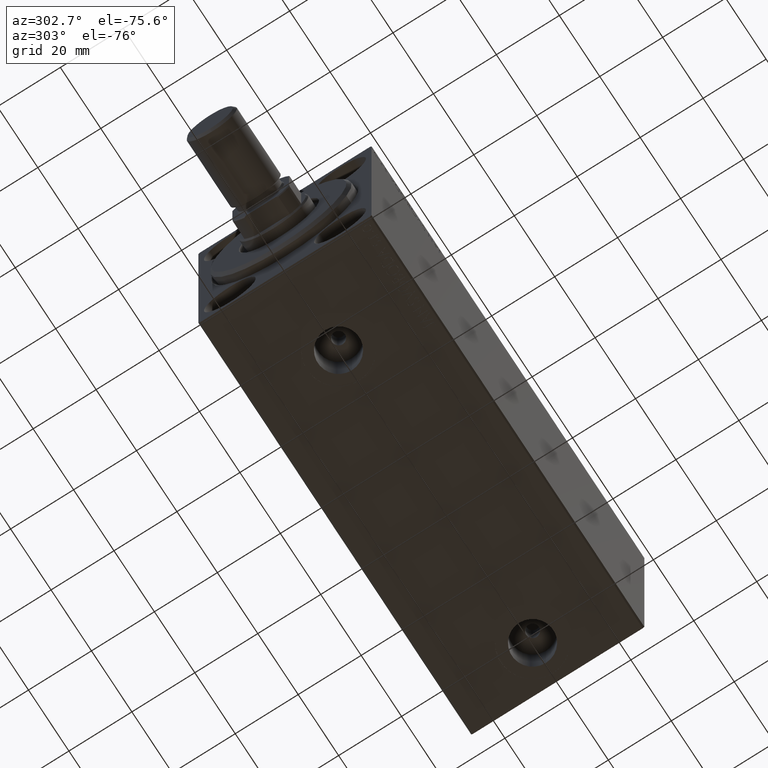
[diagram: clean part render]
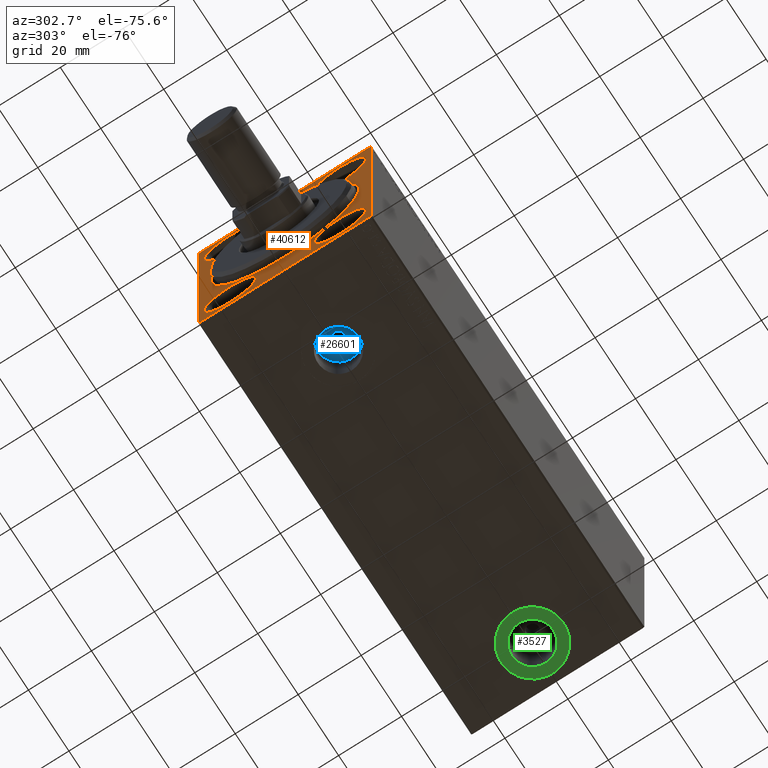
[diagram: same view with three faces highlighted in distinct colors, each labeled with its STEP entity id]
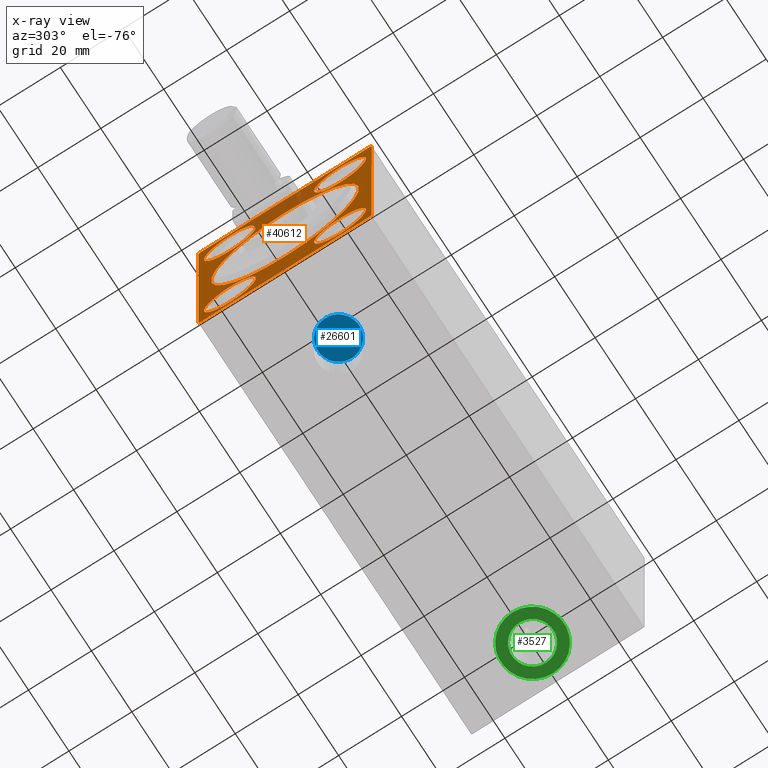
[diagram: x-ray of the same camera — body ghosted, the three highlighted faces saturated]
A machine part, auxiliary view with three faces highlighted in distinct colors.
The next image is the same camera in x-ray (body ghosted, the three faces saturated) — at least one of them is partly hidden behind the body in this view.
Their STEP definitions:

[orange] entity #40612 — the highlighted planar face has unit normal (1, 0, 0).
#225 = CIRCLE ( 'NONE', #25340, 8.250000000000000000 ) ;
#268 = VECTOR ( 'NONE', #3888, 1000.000000000000000 ) ;
#359 = VECTOR ( 'NONE', #1130, 1000.000000000000000 ) ;
#388 = DIRECTION ( 'NONE',  ( -1.000000000000000000, 0.000000000000000000, 0.000000000000000000 ) ) ;
#727 = ORIENTED_EDGE ( 'NONE', *, *, #12573, .T. ) ;
#761 = EDGE_LOOP ( 'NONE', ( #2036, #2988 ) ) ;
#966 = CARTESIAN_POINT ( 'NONE',  ( 0.000000000000000000, -27.00000000000001776, 37.50000000000000000 ) ) ;
#1051 = DIRECTION ( 'NONE',  ( 0.000000000000000000, 0.000000000000000000, 1.000000000000000000 ) ) ;
#1130 = DIRECTION ( 'NONE',  ( 0.000000000000000000, 0.000000000000000000, -1.000000000000000000 ) ) ;
#1443 = ORIENTED_EDGE ( 'NONE', *, *, #33739, .F. ) ;
#1985 = CARTESIAN_POINT ( 'NONE',  ( 0.000000000000000000, -27.00000000000001776, -37.50000000000000000 ) ) ;
#2036 = ORIENTED_EDGE ( 'NONE', *, *, #40792, .T. ) ;
#2096 = LINE ( 'NONE', #15796, #14064 ) ;
#2571 = CIRCLE ( 'NONE', #19069, 8.250000000000000000 ) ;
#2980 = ORIENTED_EDGE ( 'NONE', *, *, #35811, .F. ) ;
#2988 = ORIENTED_EDGE ( 'NONE', *, *, #32756, .T. ) ;
#3086 = DIRECTION ( 'NONE',  ( 0.000000000000000000, 0.000000000000000000, -1.000000000000000000 ) ) ;
#3096 = ORIENTED_EDGE ( 'NONE', *, *, #28322, .T. ) ;
#3167 = CARTESIAN_POINT ( 'NONE',  ( 0.000000000000000000, 27.49999999999999645, 37.50000000000000711 ) ) ;
#3673 = EDGE_LOOP ( 'NONE', ( #26452, #31049 ) ) ;
#3690 = VERTEX_POINT ( 'NONE', #44429 ) ;
#3888 = DIRECTION ( 'NONE',  ( -0.000000000000000000, 0.7071067811865524577, -0.7071067811865426878 ) ) ;
#4686 = CARTESIAN_POINT ( 'NONE',  ( 0.000000000000000000, 27.50000000000000355, -37.00000000000001421 ) ) ;
#5042 = ORIENTED_EDGE ( 'NONE', *, *, #13919, .T. ) ;
#5231 = VECTOR ( 'NONE', #5671, 1000.000000000000000 ) ;
#5671 = DIRECTION ( 'NONE',  ( 0.000000000000000000, -1.000000000000000000, -1.261617073437677999E-16 ) ) ;
#5683 = VECTOR ( 'NONE', #9772, 1000.000000000000114 ) ;
#5735 = ORIENTED_EDGE ( 'NONE', *, *, #40577, .F. ) ;
#6039 = DIRECTION ( 'NONE',  ( 0.000000000000000000, -0.7071067811865474617, -0.7071067811865474617 ) ) ;
#7014 = EDGE_LOOP ( 'NONE', ( #30357, #24914 ) ) ;
#7120 = DIRECTION ( 'NONE',  ( -1.000000000000000000, 0.000000000000000000, 0.000000000000000000 ) ) ;
#7311 = DIRECTION ( 'NONE',  ( -1.000000000000000000, 0.000000000000000000, 0.000000000000000000 ) ) ;
#7412 = CARTESIAN_POINT ( 'NONE',  ( 0.000000000000000000, 17.50000000000000355, 35.74999999999999289 ) ) ;
#7455 = CARTESIAN_POINT ( 'NONE',  ( 0.000000000000000000, -17.50000000000000355, -19.25000000000000355 ) ) ;
#7954 = VERTEX_POINT ( 'NONE', #27145 ) ;
#8027 = DIRECTION ( 'NONE',  ( 0.000000000000000000, 0.000000000000000000, -1.000000000000000000 ) ) ;
#8334 = VERTEX_POINT ( 'NONE', #28854 ) ;
#8611 = CARTESIAN_POINT ( 'NONE',  ( 0.000000000000000000, 0.000000000000000000, 23.50000000000000355 ) ) ;
#9772 = DIRECTION ( 'NONE',  ( -0.000000000000000000, -0.7071067811865573427, 0.7071067811865376918 ) ) ;
#9852 = CARTESIAN_POINT ( 'NONE',  ( 0.000000000000000000, 27.50000000000000355, -37.00000000000001421 ) ) ;
#10179 = ORIENTED_EDGE ( 'NONE', *, *, #39146, .F. ) ;
#10185 = DIRECTION ( 'NONE',  ( 0.000000000000000000, 0.000000000000000000, 1.000000000000000000 ) ) ;
#11079 = VERTEX_POINT ( 'NONE', #4686 ) ;
#11122 = CARTESIAN_POINT ( 'NONE',  ( 0.000000000000000000, -17.49999999999999645, 27.49999999999999645 ) ) ;
#11622 = DIRECTION ( 'NONE',  ( 0.000000000000000000, 0.000000000000000000, 1.000000000000000000 ) ) ;
#11814 = DIRECTION ( 'NONE',  ( 1.000000000000000000, 0.000000000000000000, 0.000000000000000000 ) ) ;
#12518 = CARTESIAN_POINT ( 'NONE',  ( 0.000000000000000000, 0.000000000000000000, 0.000000000000000000 ) ) ;
#12573 = EDGE_CURVE ( 'NONE', #11079, #44307, #43755, .T. ) ;
#12765 = FACE_OUTER_BOUND ( 'NONE', #14297, .T. ) ;
#12872 = EDGE_LOOP ( 'NONE', ( #28550, #2980 ) ) ;
#13304 = CIRCLE ( 'NONE', #36221, 8.250000000000000000 ) ;
#13387 = AXIS2_PLACEMENT_3D ( 'NONE', #11122, #7311, #24820 ) ;
#13576 = LINE ( 'NONE', #23909, #32488 ) ;
#13798 = VERTEX_POINT ( 'NONE', #42525 ) ;
#13919 = EDGE_CURVE ( 'NONE', #7954, #18811, #31724, .T. ) ;
#13960 = DIRECTION ( 'NONE',  ( 0.000000000000000000, 1.000000000000000000, 0.000000000000000000 ) ) ;
#14064 = VECTOR ( 'NONE', #13960, 1000.000000000000000 ) ;
#14297 = EDGE_LOOP ( 'NONE', ( #10179, #30757, #1443, #5042, #5735, #727, #43595, #3096 ) ) ;
#14653 = VERTEX_POINT ( 'NONE', #29230 ) ;
#14755 = CIRCLE ( 'NONE', #39861, 23.50000000000000355 ) ;
#15289 = CARTESIAN_POINT ( 'NONE',  ( 0.000000000000000000, 17.50000000000000355, 27.49999999999999645 ) ) ;
#15412 = VECTOR ( 'NONE', #6039, 1000.000000000000114 ) ;
#15609 = VERTEX_POINT ( 'NONE', #34150 ) ;
#15616 = CARTESIAN_POINT ( 'NONE',  ( 0.000000000000000000, 27.49999999999999645, 37.00000000000004263 ) ) ;
#15691 = DIRECTION ( 'NONE',  ( 0.000000000000000000, -9.251858538542970348E-17, 1.000000000000000000 ) ) ;
#15796 = CARTESIAN_POINT ( 'NONE',  ( 0.000000000000000000, -27.50000000000000355, -37.50000000000000000 ) ) ;
#16220 = AXIS2_PLACEMENT_3D ( 'NONE', #23093, #43744, #3086 ) ;
#16328 = CARTESIAN_POINT ( 'NONE',  ( 0.000000000000000000, 17.50000000000000355, 27.49999999999999645 ) ) ;
#16912 = EDGE_CURVE ( 'NONE', #23370, #20763, #13304, .T. ) ;
#16921 = VECTOR ( 'NONE', #15691, 1000.000000000000000 ) ;
#17177 = EDGE_CURVE ( 'NONE', #35076, #31308, #21887, .T. ) ;
#17438 = DIRECTION ( 'NONE',  ( 0.000000000000000000, 0.000000000000000000, 1.000000000000000000 ) ) ;
#17488 = AXIS2_PLACEMENT_3D ( 'NONE', #38587, #31417, #11622 ) ;
#18121 = CARTESIAN_POINT ( 'NONE',  ( 0.000000000000000000, 17.49999999999999645, -27.50000000000000355 ) ) ;
#18386 = CIRCLE ( 'NONE', #42778, 8.249999999999992895 ) ;
#18706 = EDGE_CURVE ( 'NONE', #23827, #15609, #2571, .T. ) ;
#18811 = VERTEX_POINT ( 'NONE', #15616 ) ;
#19069 = AXIS2_PLACEMENT_3D ( 'NONE', #20376, #7120, #17438 ) ;
#20135 = EDGE_CURVE ( 'NONE', #26798, #44307, #2096, .T. ) ;
#20302 = CARTESIAN_POINT ( 'NONE',  ( 0.000000000000000000, -17.50000000000000355, -27.50000000000000355 ) ) ;
#20376 = CARTESIAN_POINT ( 'NONE',  ( 0.000000000000000000, -17.50000000000000355, -27.50000000000000355 ) ) ;
#20613 = FACE_BOUND ( 'NONE', #12872, .T. ) ;
#20736 = EDGE_CURVE ( 'NONE', #31308, #35076, #18386, .T. ) ;
#20763 = VERTEX_POINT ( 'NONE', #25851 ) ;
#21887 = CIRCLE ( 'NONE', #29080, 8.249999999999992895 ) ;
#21917 = VERTEX_POINT ( 'NONE', #42870 ) ;
#22025 = LINE ( 'NONE', #35932, #359 ) ;
#22418 = EDGE_LOOP ( 'NONE', ( #30537, #26940 ) ) ;
#22600 = CARTESIAN_POINT ( 'NONE',  ( 0.000000000000000000, 17.49999999999999645, -19.25000000000000355 ) ) ;
#22685 = EDGE_CURVE ( 'NONE', #15609, #23827, #29933, .T. ) ;
#23093 = CARTESIAN_POINT ( 'NONE',  ( 0.000000000000000000, 0.000000000000000000, 0.000000000000000000 ) ) ;
#23286 = DIRECTION ( 'NONE',  ( 0.000000000000000000, 0.000000000000000000, 1.000000000000000000 ) ) ;
#23370 = VERTEX_POINT ( 'NONE', #22600 ) ;
#23827 = VERTEX_POINT ( 'NONE', #7455 ) ;
#23909 = CARTESIAN_POINT ( 'NONE',  ( 0.000000000000000000, -27.50000000000000355, 37.00000000000001421 ) ) ;
#24820 = DIRECTION ( 'NONE',  ( 0.000000000000000000, 0.000000000000000000, 1.000000000000000000 ) ) ;
#24914 = ORIENTED_EDGE ( 'NONE', *, *, #17177, .F. ) ;
#25292 = CARTESIAN_POINT ( 'NONE',  ( 0.000000000000000000, 0.000000000000000000, 0.000000000000000000 ) ) ;
#25340 = AXIS2_PLACEMENT_3D ( 'NONE', #40442, #27405, #44039 ) ;
#25851 = CARTESIAN_POINT ( 'NONE',  ( 0.000000000000000000, 17.49999999999999645, -35.75000000000000711 ) ) ;
#26052 = AXIS2_PLACEMENT_3D ( 'NONE', #12518, #26212, #8027 ) ;
#26212 = DIRECTION ( 'NONE',  ( 1.000000000000000000, 0.000000000000000000, 0.000000000000000000 ) ) ;
#26452 = ORIENTED_EDGE ( 'NONE', *, *, #18706, .F. ) ;
#26798 = VERTEX_POINT ( 'NONE', #1985 ) ;
#26834 = LINE ( 'NONE', #40523, #5683 ) ;
#26857 = CIRCLE ( 'NONE', #26052, 23.50000000000000355 ) ;
#26940 = ORIENTED_EDGE ( 'NONE', *, *, #31244, .F. ) ;
#27145 = CARTESIAN_POINT ( 'NONE',  ( 0.000000000000000000, 27.00000000000002487, 37.50000000000000711 ) ) ;
#27405 = DIRECTION ( 'NONE',  ( -1.000000000000000000, 0.000000000000000000, 0.000000000000000000 ) ) ;
#28322 = EDGE_CURVE ( 'NONE', #26798, #21917, #26834, .T. ) ;
#28497 = AXIS2_PLACEMENT_3D ( 'NONE', #20302, #30643, #10185 ) ;
#28550 = ORIENTED_EDGE ( 'NONE', *, *, #42829, .F. ) ;
#28854 = CARTESIAN_POINT ( 'NONE',  ( 0.000000000000000000, -17.49999999999999645, 19.25000000000000000 ) ) ;
#29080 = AXIS2_PLACEMENT_3D ( 'NONE', #16328, #40329, #23286 ) ;
#29177 = LINE ( 'NONE', #43303, #16921 ) ;
#29230 = CARTESIAN_POINT ( 'NONE',  ( 0.000000000000000000, -17.49999999999999645, 35.74999999999999289 ) ) ;
#29275 = EDGE_CURVE ( 'NONE', #3690, #39636, #13576, .T. ) ;
#29933 = CIRCLE ( 'NONE', #28497, 8.250000000000000000 ) ;
#30357 = ORIENTED_EDGE ( 'NONE', *, *, #20736, .F. ) ;
#30447 = VERTEX_POINT ( 'NONE', #8611 ) ;
#30537 = ORIENTED_EDGE ( 'NONE', *, *, #16912, .F. ) ;
#30643 = DIRECTION ( 'NONE',  ( -1.000000000000000000, 0.000000000000000000, 0.000000000000000000 ) ) ;
#30726 = FACE_BOUND ( 'NONE', #22418, .T. ) ;
#30757 = ORIENTED_EDGE ( 'NONE', *, *, #29275, .T. ) ;
#31049 = ORIENTED_EDGE ( 'NONE', *, *, #22685, .F. ) ;
#31244 = EDGE_CURVE ( 'NONE', #20763, #23370, #225, .T. ) ;
#31299 = CARTESIAN_POINT ( 'NONE',  ( 0.000000000000000000, 27.00000000000002487, 37.50000000000000711 ) ) ;
#31308 = VERTEX_POINT ( 'NONE', #7412 ) ;
#31417 = DIRECTION ( 'NONE',  ( -1.000000000000000000, 0.000000000000000000, 0.000000000000000000 ) ) ;
#31724 = LINE ( 'NONE', #31299, #268 ) ;
#32488 = VECTOR ( 'NONE', #41615, 1000.000000000000114 ) ;
#32751 = CIRCLE ( 'NONE', #13387, 8.249999999999992895 ) ;
#32756 = EDGE_CURVE ( 'NONE', #13798, #30447, #26857, .T. ) ;
#32827 = DIRECTION ( 'NONE',  ( -1.000000000000000000, 0.000000000000000000, 0.000000000000000000 ) ) ;
#33739 = EDGE_CURVE ( 'NONE', #7954, #39636, #33940, .T. ) ;
#33940 = LINE ( 'NONE', #3167, #5231 ) ;
#34150 = CARTESIAN_POINT ( 'NONE',  ( 0.000000000000000000, -17.50000000000000355, -35.75000000000000711 ) ) ;
#35076 = VERTEX_POINT ( 'NONE', #36331 ) ;
#35811 = EDGE_CURVE ( 'NONE', #8334, #14653, #38983, .T. ) ;
#35842 = DIRECTION ( 'NONE',  ( 0.000000000000000000, 0.000000000000000000, -1.000000000000000000 ) ) ;
#35932 = CARTESIAN_POINT ( 'NONE',  ( 0.000000000000000000, -27.50000000000000355, 37.50000000000000000 ) ) ;
#36221 = AXIS2_PLACEMENT_3D ( 'NONE', #18121, #388, #1051 ) ;
#36331 = CARTESIAN_POINT ( 'NONE',  ( 0.000000000000000000, 17.50000000000000355, 19.25000000000000000 ) ) ;
#38587 = CARTESIAN_POINT ( 'NONE',  ( 0.000000000000000000, -17.49999999999999645, 27.49999999999999645 ) ) ;
#38983 = CIRCLE ( 'NONE', #17488, 8.249999999999992895 ) ;
#39146 = EDGE_CURVE ( 'NONE', #3690, #21917, #22025, .T. ) ;
#39292 = CARTESIAN_POINT ( 'NONE',  ( 0.000000000000000000, 27.00000000000001776, -37.50000000000000000 ) ) ;
#39636 = VERTEX_POINT ( 'NONE', #966 ) ;
#39861 = AXIS2_PLACEMENT_3D ( 'NONE', #25292, #11814, #35842 ) ;
#39933 = FACE_BOUND ( 'NONE', #761, .T. ) ;
#40329 = DIRECTION ( 'NONE',  ( -1.000000000000000000, 0.000000000000000000, 0.000000000000000000 ) ) ;
#40364 = PLANE ( 'NONE',  #16220 ) ;
#40442 = CARTESIAN_POINT ( 'NONE',  ( 0.000000000000000000, 17.49999999999999645, -27.50000000000000355 ) ) ;
#40523 = CARTESIAN_POINT ( 'NONE',  ( 0.000000000000000000, -27.00000000000001776, -37.50000000000000000 ) ) ;
#40577 = EDGE_CURVE ( 'NONE', #11079, #18811, #29177, .T. ) ;
#40586 = FACE_BOUND ( 'NONE', #7014, .T. ) ;
#40612 = ADVANCED_FACE ( 'NONE', ( #39933, #30726, #20613, #40586, #43963, #12765 ), #40364, .F. ) ;
#40792 = EDGE_CURVE ( 'NONE', #30447, #13798, #14755, .T. ) ;
#41615 = DIRECTION ( 'NONE',  ( -0.000000000000000000, 0.7071067811865474617, 0.7071067811865474617 ) ) ;
#42525 = CARTESIAN_POINT ( 'NONE',  ( 0.000000000000000000, 2.877919977996280715E-15, -23.50000000000000355 ) ) ;
#42688 = DIRECTION ( 'NONE',  ( 0.000000000000000000, 0.000000000000000000, 1.000000000000000000 ) ) ;
#42778 = AXIS2_PLACEMENT_3D ( 'NONE', #15289, #32827, #42688 ) ;
#42829 = EDGE_CURVE ( 'NONE', #14653, #8334, #32751, .T. ) ;
#42870 = CARTESIAN_POINT ( 'NONE',  ( 0.000000000000000000, -27.50000000000000355, -37.00000000000002842 ) ) ;
#43303 = CARTESIAN_POINT ( 'NONE',  ( 0.000000000000000000, 27.50000000000000355, -37.50000000000000000 ) ) ;
#43595 = ORIENTED_EDGE ( 'NONE', *, *, #20135, .F. ) ;
#43744 = DIRECTION ( 'NONE',  ( 1.000000000000000000, 0.000000000000000000, 0.000000000000000000 ) ) ;
#43755 = LINE ( 'NONE', #9852, #15412 ) ;
#43963 = FACE_BOUND ( 'NONE', #3673, .T. ) ;
#44039 = DIRECTION ( 'NONE',  ( 0.000000000000000000, 0.000000000000000000, 1.000000000000000000 ) ) ;
#44307 = VERTEX_POINT ( 'NONE', #39292 ) ;
#44429 = CARTESIAN_POINT ( 'NONE',  ( 0.000000000000000000, -27.50000000000000355, 37.00000000000001421 ) ) ;

[blue] entity #26601 — the highlighted planar face has unit normal (0, 0, -1).
#237 = CIRCLE ( 'NONE', #33990, 6.580000000000002736 ) ;
#278 = VERTEX_POINT ( 'NONE', #38417 ) ;
#645 = DIRECTION ( 'NONE',  ( -1.000000000000000000, 0.000000000000000000, -0.000000000000000000 ) ) ;
#2016 = EDGE_LOOP ( 'NONE', ( #12463, #18017 ) ) ;
#2235 = VERTEX_POINT ( 'NONE', #7257 ) ;
#2286 = CARTESIAN_POINT ( 'NONE',  ( 33.07999999999999829, -1.921168617569957634E-15, -24.49999999999999289 ) ) ;
#2989 = CARTESIAN_POINT ( 'NONE',  ( 26.50000000000000000, -2.726986211408916281E-15, -24.49999999999999289 ) ) ;
#3139 = CARTESIAN_POINT ( 'NONE',  ( 26.50000000000000000, -2.726986211408916281E-15, -24.49999999999999289 ) ) ;
#3208 = DIRECTION ( 'NONE',  ( -1.000000000000000000, 0.000000000000000000, 0.000000000000000000 ) ) ;
#4436 = VERTEX_POINT ( 'NONE', #38888 ) ;
#6833 = AXIS2_PLACEMENT_3D ( 'NONE', #17345, #41130, #3208 ) ;
#7257 = CARTESIAN_POINT ( 'NONE',  ( 24.50000000000000000, -2.726986211408916281E-15, -24.49999999999999289 ) ) ;
#7607 = VERTEX_POINT ( 'NONE', #2286 ) ;
#8613 = EDGE_CURVE ( 'NONE', #4436, #7607, #237, .T. ) ;
#9813 = AXIS2_PLACEMENT_3D ( 'NONE', #2989, #40262, #16695 ) ;
#12463 = ORIENTED_EDGE ( 'NONE', *, *, #20641, .F. ) ;
#13788 = DIRECTION ( 'NONE',  ( 0.000000000000000000, 0.000000000000000000, -1.000000000000000000 ) ) ;
#14094 = CIRCLE ( 'NONE', #9813, 1.999999999999998224 ) ;
#14547 = ORIENTED_EDGE ( 'NONE', *, *, #8613, .T. ) ;
#16695 = DIRECTION ( 'NONE',  ( -1.000000000000000000, 0.000000000000000000, 0.000000000000000000 ) ) ;
#17176 = DIRECTION ( 'NONE',  ( -1.000000000000000000, 0.000000000000000000, 0.000000000000000000 ) ) ;
#17345 = CARTESIAN_POINT ( 'NONE',  ( 26.50000000000000000, -2.726986211408916281E-15, -24.49999999999999289 ) ) ;
#17725 = FACE_OUTER_BOUND ( 'NONE', #30579, .T. ) ;
#17819 = AXIS2_PLACEMENT_3D ( 'NONE', #3139, #34356, #645 ) ;
#18017 = ORIENTED_EDGE ( 'NONE', *, *, #39566, .F. ) ;
#18848 = DIRECTION ( 'NONE',  ( 0.000000000000000000, 0.000000000000000000, -1.000000000000000000 ) ) ;
#18989 = CIRCLE ( 'NONE', #6833, 6.580000000000002736 ) ;
#20338 = ORIENTED_EDGE ( 'NONE', *, *, #38193, .T. ) ;
#20641 = EDGE_CURVE ( 'NONE', #2235, #278, #14094, .T. ) ;
#25466 = AXIS2_PLACEMENT_3D ( 'NONE', #34027, #13788, #17176 ) ;
#26601 = ADVANCED_FACE ( 'NONE', ( #37938, #17725 ), #31428, .T. ) ;
#30579 = EDGE_LOOP ( 'NONE', ( #14547, #20338 ) ) ;
#31428 = PLANE ( 'NONE',  #17819 ) ;
#33990 = AXIS2_PLACEMENT_3D ( 'NONE', #41816, #18848, #39500 ) ;
#34027 = CARTESIAN_POINT ( 'NONE',  ( 26.50000000000000000, -2.726986211408916281E-15, -24.49999999999999289 ) ) ;
#34356 = DIRECTION ( 'NONE',  ( 0.000000000000000000, 0.000000000000000000, -1.000000000000000000 ) ) ;
#37938 = FACE_BOUND ( 'NONE', #2016, .T. ) ;
#38193 = EDGE_CURVE ( 'NONE', #7607, #4436, #18989, .T. ) ;
#38417 = CARTESIAN_POINT ( 'NONE',  ( 28.49999999999999645, -2.482056851579445985E-15, -24.49999999999999289 ) ) ;
#38888 = CARTESIAN_POINT ( 'NONE',  ( 19.91999999999999815, -2.726986211408916281E-15, -24.49999999999999289 ) ) ;
#39077 = CIRCLE ( 'NONE', #25466, 1.999999999999998224 ) ;
#39500 = DIRECTION ( 'NONE',  ( -1.000000000000000000, 0.000000000000000000, 0.000000000000000000 ) ) ;
#39566 = EDGE_CURVE ( 'NONE', #278, #2235, #39077, .T. ) ;
#40262 = DIRECTION ( 'NONE',  ( 0.000000000000000000, 0.000000000000000000, -1.000000000000000000 ) ) ;
#41130 = DIRECTION ( 'NONE',  ( 0.000000000000000000, 0.000000000000000000, -1.000000000000000000 ) ) ;
#41816 = CARTESIAN_POINT ( 'NONE',  ( 26.50000000000000000, -2.726986211408916281E-15, -24.49999999999999289 ) ) ;

[green] entity #3527 — the highlighted planar face has unit normal (0, 0, -1).
#1371 = VERTEX_POINT ( 'NONE', #40597 ) ;
#1711 = CIRCLE ( 'NONE', #26835, 6.580000000000002736 ) ;
#1743 = AXIS2_PLACEMENT_3D ( 'NONE', #5411, #26299, #39992 ) ;
#3527 = ADVANCED_FACE ( 'NONE', ( #4709, #4269 ), #11012, .T. ) ;
#4269 = FACE_OUTER_BOUND ( 'NONE', #21274, .T. ) ;
#4709 = FACE_BOUND ( 'NONE', #30019, .T. ) ;
#4742 = DIRECTION ( 'NONE',  ( 0.000000000000000000, 0.000000000000000000, -1.000000000000000000 ) ) ;
#5307 = DIRECTION ( 'NONE',  ( 0.000000000000000000, 0.000000000000000000, -1.000000000000000000 ) ) ;
#5364 = CARTESIAN_POINT ( 'NONE',  ( 112.5000000000000142, -1.446222058916133203E-14, -37.39999999999999858 ) ) ;
#5411 = CARTESIAN_POINT ( 'NONE',  ( 122.5000000000000142, -1.446222058916133203E-14, -37.39999999999999858 ) ) ;
#10790 = DIRECTION ( 'NONE',  ( 0.000000000000000000, 0.000000000000000000, -1.000000000000000000 ) ) ;
#11012 = PLANE ( 'NONE',  #39543 ) ;
#11091 = VERTEX_POINT ( 'NONE', #20169 ) ;
#13233 = EDGE_CURVE ( 'NONE', #1371, #11091, #1711, .T. ) ;
#14638 = EDGE_CURVE ( 'NONE', #11091, #1371, #44050, .T. ) ;
#15477 = CARTESIAN_POINT ( 'NONE',  ( 122.5000000000000142, -1.446222058916133203E-14, -37.39999999999999858 ) ) ;
#15865 = VERTEX_POINT ( 'NONE', #5364 ) ;
#16991 = CIRCLE ( 'NONE', #43499, 9.999999999999994671 ) ;
#17687 = ORIENTED_EDGE ( 'NONE', *, *, #20805, .T. ) ;
#18346 = AXIS2_PLACEMENT_3D ( 'NONE', #39888, #5307, #39434 ) ;
#18414 = CARTESIAN_POINT ( 'NONE',  ( 122.5000000000000142, -1.446222058916133203E-14, -37.39999999999999858 ) ) ;
#20169 = CARTESIAN_POINT ( 'NONE',  ( 115.9200000000000159, -1.446222058916133203E-14, -37.39999999999999858 ) ) ;
#20531 = CARTESIAN_POINT ( 'NONE',  ( 132.5000000000000000, -1.323757379001398213E-14, -37.39999999999999858 ) ) ;
#20805 = EDGE_CURVE ( 'NONE', #15865, #22671, #16991, .T. ) ;
#21274 = EDGE_LOOP ( 'NONE', ( #17687, #27102 ) ) ;
#22671 = VERTEX_POINT ( 'NONE', #20531 ) ;
#26299 = DIRECTION ( 'NONE',  ( 0.000000000000000000, 0.000000000000000000, -1.000000000000000000 ) ) ;
#26835 = AXIS2_PLACEMENT_3D ( 'NONE', #15477, #39276, #39953 ) ;
#27102 = ORIENTED_EDGE ( 'NONE', *, *, #41491, .T. ) ;
#29240 = DIRECTION ( 'NONE',  ( -1.000000000000000000, 0.000000000000000000, 0.000000000000000000 ) ) ;
#30019 = EDGE_LOOP ( 'NONE', ( #35799, #42074 ) ) ;
#31669 = DIRECTION ( 'NONE',  ( -1.000000000000000000, 0.000000000000000000, -0.000000000000000000 ) ) ;
#35799 = ORIENTED_EDGE ( 'NONE', *, *, #14638, .F. ) ;
#39276 = DIRECTION ( 'NONE',  ( 0.000000000000000000, 0.000000000000000000, -1.000000000000000000 ) ) ;
#39434 = DIRECTION ( 'NONE',  ( -1.000000000000000000, 0.000000000000000000, 0.000000000000000000 ) ) ;
#39543 = AXIS2_PLACEMENT_3D ( 'NONE', #18414, #10790, #31669 ) ;
#39888 = CARTESIAN_POINT ( 'NONE',  ( 122.5000000000000142, -1.446222058916133203E-14, -37.39999999999999858 ) ) ;
#39953 = DIRECTION ( 'NONE',  ( -1.000000000000000000, 0.000000000000000000, 0.000000000000000000 ) ) ;
#39992 = DIRECTION ( 'NONE',  ( -1.000000000000000000, 0.000000000000000000, 0.000000000000000000 ) ) ;
#40561 = CIRCLE ( 'NONE', #18346, 9.999999999999994671 ) ;
#40597 = CARTESIAN_POINT ( 'NONE',  ( 129.0800000000000409, -1.365640299532237615E-14, -37.39999999999999858 ) ) ;
#41491 = EDGE_CURVE ( 'NONE', #22671, #15865, #40561, .T. ) ;
#42074 = ORIENTED_EDGE ( 'NONE', *, *, #13233, .F. ) ;
#43139 = CARTESIAN_POINT ( 'NONE',  ( 122.5000000000000142, -1.446222058916133203E-14, -37.39999999999999858 ) ) ;
#43499 = AXIS2_PLACEMENT_3D ( 'NONE', #43139, #4742, #29240 ) ;
#44050 = CIRCLE ( 'NONE', #1743, 6.580000000000002736 ) ;